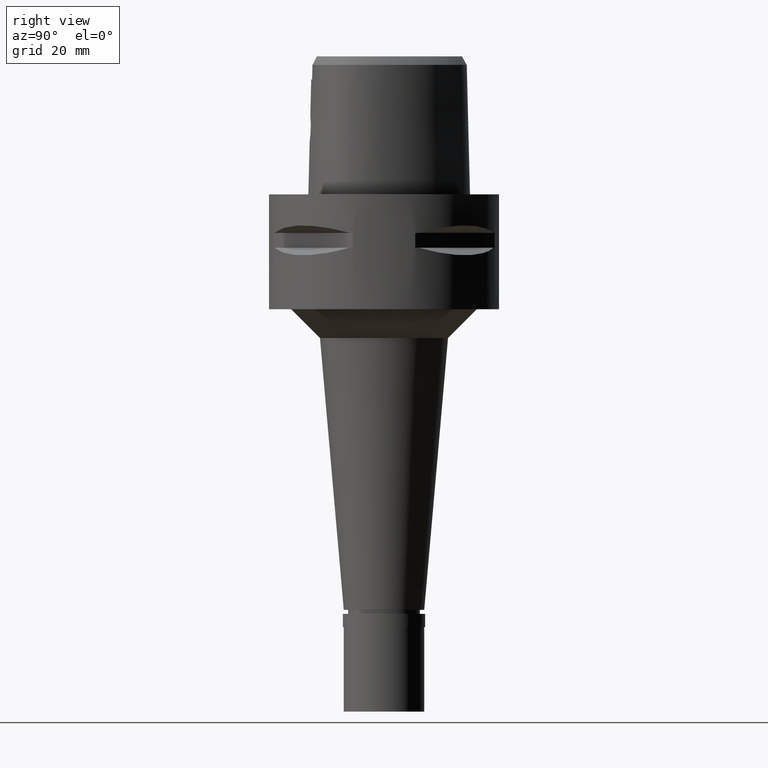
[diagram: clean part render]
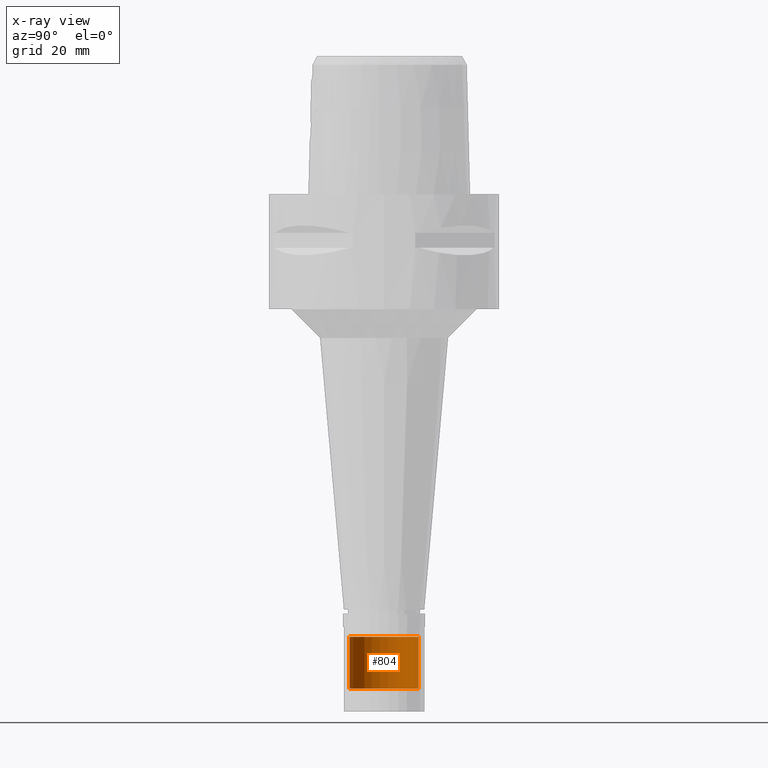
[diagram: x-ray — body ghosted, one internal face saturated and labeled with its STEP entity id]
A machine part, right view, then the same camera in x-ray: the body is ghosted and one INTERNAL B-rep face — a face not visible from any outside direction — is saturated and labeled: STEP entity #804.
In plain terms, the highlighted cylindrical surface (edge-blend (fillet) strip) has radius 6 mm, axis along (0, 0, -1).
Its self-contained STEP definition (entity closure, byte-faithful):
#55 = CARTESIAN_POINT ( 'NONE',  ( 0.0000000000000000000, 0.0000000000000000000, 4.299999999999999822 ) ) ;
#71 = VERTEX_POINT ( 'NONE', #4424 ) ;
#215 = ORIENTED_EDGE ( 'NONE', *, *, #2856, .T. ) ;
#356 = FACE_OUTER_BOUND ( 'NONE', #3677, .T. ) ;
#408 = VERTEX_POINT ( 'NONE', #4117 ) ;
#459 = CARTESIAN_POINT ( 'NONE',  ( 0.0000000000000000000, 6.000000000000000000, -77.00000000000000000 ) ) ;
#581 = ORIENTED_EDGE ( 'NONE', *, *, #4545, .T. ) ;
#693 = VECTOR ( 'NONE', #1549, 1000.000000000000000 ) ;
#804 = ADVANCED_FACE ( 'NONE', ( #356 ), #3221, .T. ) ;
#890 = LINE ( 'NONE', #2742, #3093 ) ;
#944 = CIRCLE ( 'NONE', #1397, 6.000000000000000000 ) ;
#947 = VERTEX_POINT ( 'NONE', #1246 ) ;
#1045 = DIRECTION ( 'NONE',  ( 0.0000000000000000000, 0.0000000000000000000, -1.000000000000000000 ) ) ;
#1246 = CARTESIAN_POINT ( 'NONE',  ( 0.0000000000000000000, 6.000000000000000000, -86.00000000000000000 ) ) ;
#1291 = EDGE_CURVE ( 'NONE', #408, #3617, #890, .T. ) ;
#1397 = AXIS2_PLACEMENT_3D ( 'NONE', #3637, #2537, #2519 ) ;
#1444 = CIRCLE ( 'NONE', #4052, 6.000000000000000000 ) ;
#1549 = DIRECTION ( 'NONE',  ( 0.0000000000000000000, 0.0000000000000000000, -1.000000000000000000 ) ) ;
#1593 = DIRECTION ( 'NONE',  ( 0.0000000000000000000, 0.0000000000000000000, 1.000000000000000000 ) ) ;
#2519 = DIRECTION ( 'NONE',  ( 0.0000000000000000000, -1.000000000000000000, 0.0000000000000000000 ) ) ;
#2537 = DIRECTION ( 'NONE',  ( 0.0000000000000000000, 0.0000000000000000000, -1.000000000000000000 ) ) ;
#2726 = ORIENTED_EDGE ( 'NONE', *, *, #4342, .T. ) ;
#2742 = CARTESIAN_POINT ( 'NONE',  ( 0.0000000000000000000, -6.000000000000000000, -77.00000000000000000 ) ) ;
#2856 = EDGE_CURVE ( 'NONE', #408, #71, #944, .T. ) ;
#3093 = VECTOR ( 'NONE', #4163, 1000.000000000000000 ) ;
#3221 = CYLINDRICAL_SURFACE ( 'NONE', #4225, 6.000000000000000000 ) ;
#3258 = LINE ( 'NONE', #459, #693 ) ;
#3278 = DIRECTION ( 'NONE',  ( 0.0000000000000000000, -1.000000000000000000, 0.0000000000000000000 ) ) ;
#3368 = DIRECTION ( 'NONE',  ( 0.0000000000000000000, 1.000000000000000000, 0.0000000000000000000 ) ) ;
#3617 = VERTEX_POINT ( 'NONE', #3738 ) ;
#3637 = CARTESIAN_POINT ( 'NONE',  ( 0.0000000000000000000, 0.0000000000000000000, -77.00000000000000000 ) ) ;
#3677 = EDGE_LOOP ( 'NONE', ( #581, #3928, #215, #2726 ) ) ;
#3738 = CARTESIAN_POINT ( 'NONE',  ( 0.0000000000000000000, -6.000000000000000000, -86.00000000000000000 ) ) ;
#3928 = ORIENTED_EDGE ( 'NONE', *, *, #1291, .F. ) ;
#4052 = AXIS2_PLACEMENT_3D ( 'NONE', #4555, #1593, #3368 ) ;
#4117 = CARTESIAN_POINT ( 'NONE',  ( 0.0000000000000000000, -6.000000000000000000, -77.00000000000000000 ) ) ;
#4163 = DIRECTION ( 'NONE',  ( 0.0000000000000000000, 0.0000000000000000000, -1.000000000000000000 ) ) ;
#4225 = AXIS2_PLACEMENT_3D ( 'NONE', #55, #1045, #3278 ) ;
#4342 = EDGE_CURVE ( 'NONE', #71, #947, #3258, .T. ) ;
#4424 = CARTESIAN_POINT ( 'NONE',  ( 0.0000000000000000000, 6.000000000000000000, -77.00000000000000000 ) ) ;
#4545 = EDGE_CURVE ( 'NONE', #947, #3617, #1444, .T. ) ;
#4555 = CARTESIAN_POINT ( 'NONE',  ( 0.0000000000000000000, 0.0000000000000000000, -86.00000000000000000 ) ) ;